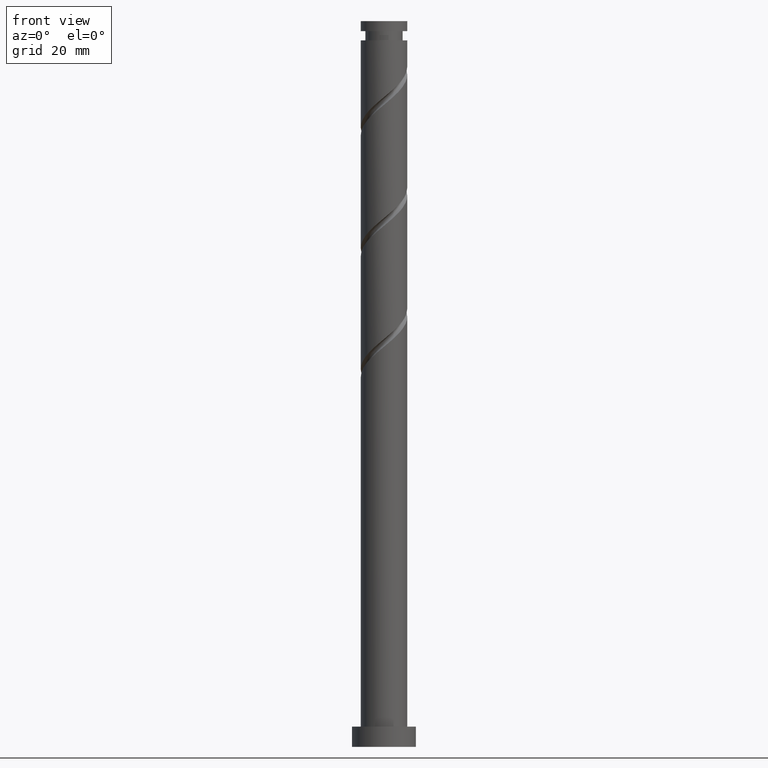
[diagram: clean part render]
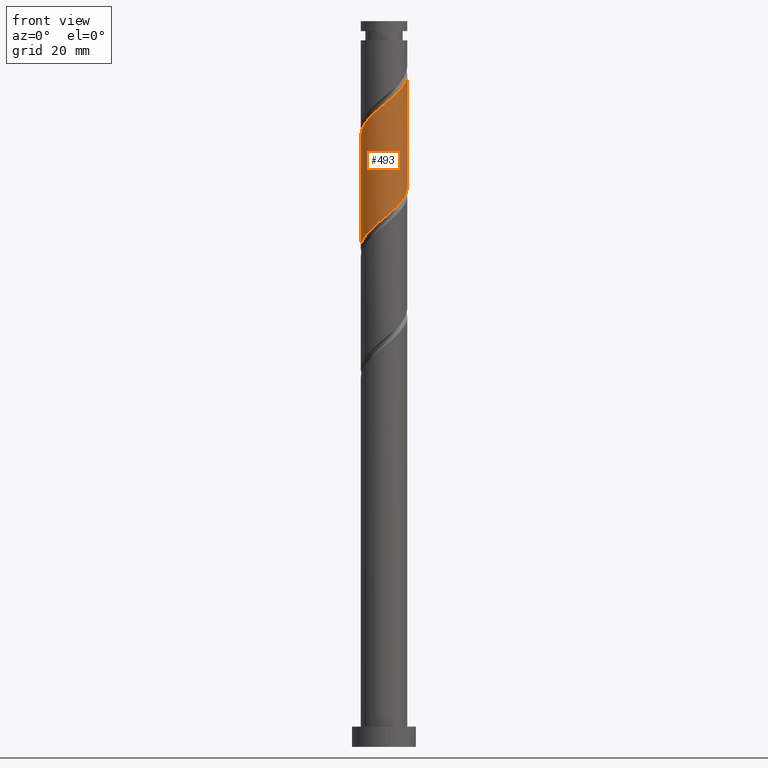
[diagram: same view with one face highlighted and labeled with its STEP entity id]
A machine part, front view. The second image highlights one B-rep face of the part: STEP entity #493.
In plain terms, the highlighted cylindrical surface (edge-blend (fillet) strip) has radius 8 mm, axis along (-0, -0, -1).
Its self-contained STEP definition (entity closure, byte-faithful):
#11 = CARTESIAN_POINT ( 'NONE',  ( 5.053057863439636144, -6.202145292455754522, 225.7043651023518294 ) ) ;
#16 = CARTESIAN_POINT ( 'NONE',  ( 2.233801474206661641, -7.681805189786587107, 184.0376984356851437 ) ) ;
#55 = CARTESIAN_POINT ( 'NONE',  ( -1.591979899370594698, -7.839999999999999858, 180.8325702305569678 ) ) ;
#76 = VERTEX_POINT ( 'NONE', #1139 ) ;
#88 = CARTESIAN_POINT ( 'NONE',  ( 0.000000000000000000, 0.000000000000000000, 250.0000000000000000 ) ) ;
#90 = CARTESIAN_POINT ( 'NONE',  ( 6.247698045502843023, -5.090170940630192931, 188.0441086920953637 ) ) ;
#120 = CARTESIAN_POINT ( 'NONE',  ( 8.000000000000014211, 5.114930978384067632E-15, 231.5879816879983935 ) ) ;
#126 = EDGE_LOOP ( 'NONE', ( #1558, #533, #244, #1672 ) ) ;
#135 = CARTESIAN_POINT ( 'NONE',  ( 2.543928247833117329, -7.646698643368457837, 223.3005189485055837 ) ) ;
#175 = CARTESIAN_POINT ( 'NONE',  ( 5.547845850269218282, -5.763801386381266489, 187.2428266408132629 ) ) ;
#183 = CARTESIAN_POINT ( 'NONE',  ( -5.053057863439629038, -6.202145292455744752, 177.6274420254286781 ) ) ;
#194 = VERTEX_POINT ( 'NONE', #1755 ) ;
#202 = CARTESIAN_POINT ( 'NONE',  ( -5.806134645082210888, -5.588592985340064878, 176.8261599741466625 ) ) ;
#237 = CARTESIAN_POINT ( 'NONE',  ( 7.590945600825408590, -2.525380146692651984, 190.4479548459415241 ) ) ;
#244 = ORIENTED_EDGE ( 'NONE', *, *, #1671, .T. ) ;
#276 = CARTESIAN_POINT ( 'NONE',  ( 7.895051195043959247, -1.291575250473287584, 230.5120574100441502 ) ) ;
#306 = CARTESIAN_POINT ( 'NONE',  ( 3.166541495077602519, -7.410572584663606577, 184.8389804869671877 ) ) ;
#394 = CARTESIAN_POINT ( 'NONE',  ( 7.897582266626952396, -1.603672477308134336, 191.2492368972235965 ) ) ;
#405 = CARTESIAN_POINT ( 'NONE',  ( -2.543928247833118661, -7.646698643368448067, 180.0312881792748669 ) ) ;
#414 = CARTESIAN_POINT ( 'NONE',  ( -8.000000000000012434, -0.3181850426941350007, 211.0188192702979393 ) ) ;
#418 = EDGE_CURVE ( 'NONE', #1532, #76, #870, .T. ) ;
#431 = CARTESIAN_POINT ( 'NONE',  ( -6.247698045502857234, -5.090170940630195595, 215.2876984356851153 ) ) ;
#446 = CARTESIAN_POINT ( 'NONE',  ( -7.284308935023874554, -3.447087816077166966, 213.6851343331209705 ) ) ;
#460 = CARTESIAN_POINT ( 'NONE',  ( 8.000000000000000000, 9.797174393178825657E-16, 250.0000000000000000 ) ) ;
#492 =( BOUNDED_CURVE ( )  B_SPLINE_CURVE ( 2, ( #579, #414, #1155, #1014, #1146, #446, #1699, #431, #1826, #550, #562, #997, #1126, #988, #1708, #1135, #1007, #135, #1024, #1299, #11, #1581, #586, #1556, #1163, #879, #276, #690, #120 ),
 .UNSPECIFIED., .F., .T. ) 
 B_SPLINE_CURVE_WITH_KNOTS ( ( 3, 2, 2, 2, 2, 2, 2, 2, 2, 2, 2, 2, 2, 2, 3 ),
 ( 0.5545271625973832164, 0.5576923076923077094, 0.5673076923076922906, 0.5769230769230768718, 0.5865384615384615641, 0.5961538461538461453, 0.6057692307692308376, 0.6153846153846154188, 0.6250000000000000000, 0.6346153846153845812, 0.6442307692307691624, 0.6538461538461538547, 0.6634615384615384359, 0.6730769230769231282, 0.6795271625973834384 ),
 .UNSPECIFIED. ) 
 CURVE ( )  GEOMETRIC_REPRESENTATION_ITEM ( )  RATIONAL_B_SPLINE_CURVE ( ( 0.9061636035682792967, 0.9069090390690678349, 0.9090909090909243817, 0.9024626128164281447, 0.9090909090909243817, 0.9024626128164281447, 0.9090909090909243817, 0.9024626128164281447, 0.9090909090909243817, 0.9024626128164281447, 0.9090909090909243817, 0.9024626128164281447, 0.9090909090909243817, 0.9024626128164281447, 0.9090909090909243817, 0.9024626128164281447, 0.9090909090909243817, 0.9024626128164281447, 0.9090909090909243817, 0.9024626128164281447, 0.9090909090909243817, 0.9024626128164281447, 0.9090909090909243817, 0.9024626128164281447, 0.9090909090909243817, 0.9024626128164281447, 0.9090909090909243817, 0.9046444828382845804, 0.9061636035682794077 ) ) 
 REPRESENTATION_ITEM ( '' )  );
#493 = ADVANCED_FACE ( 'NONE', ( #639 ), #932, .T. ) ;
#533 = ORIENTED_EDGE ( 'NONE', *, *, #689, .F. ) ;
#541 = CARTESIAN_POINT ( 'NONE',  ( 8.000000000000014211, 5.114930978384066843E-15, 231.5879816879983935 ) ) ;
#548 = CARTESIAN_POINT ( 'NONE',  ( -7.738225566650695164, -2.250208024216795888, 173.6210317690184297 ) ) ;
#550 = CARTESIAN_POINT ( 'NONE',  ( -4.847993655035601535, -6.437431832132351595, 216.8902625382492033 ) ) ;
#562 = CARTESIAN_POINT ( 'NONE',  ( -4.007267575056605580, -6.924002208397983971, 217.6915445895312757 ) ) ;
#579 = CARTESIAN_POINT ( 'NONE',  ( -8.000000000000012434, 4.905547838918053407E-15, 210.7546483546649938 ) ) ;
#582 = CARTESIAN_POINT ( 'NONE',  ( 4.007267575056594033, -6.924002208397975089, 185.6402625382492033 ) ) ;
#586 = CARTESIAN_POINT ( 'NONE',  ( 6.390495706159080136, -4.812646322924902798, 227.3069292049159174 ) ) ;
#614 = VECTOR ( 'NONE', #1649, 1000.000000000000000 ) ;
#639 = FACE_OUTER_BOUND ( 'NONE', #126, .T. ) ;
#653 = CARTESIAN_POINT ( 'NONE',  ( -8.000000000000000000, 0.000000000000000000, 250.0000000000000000 ) ) ;
#666 = CARTESIAN_POINT ( 'NONE',  ( -7.356541166943313392, -3.143453842363255646, 174.4223138203005021 ) ) ;
#668 = DIRECTION ( 'NONE',  ( -1.000000000000000000, 0.000000000000000000, 0.000000000000000000 ) ) ;
#669 = CARTESIAN_POINT ( 'NONE',  ( 8.000000000000000000, -0.3181850426941528753, 192.3129878574824829 ) ) ;
#678 = CARTESIAN_POINT ( 'NONE',  ( 7.974729545032074540, -0.6353650002891882975, 192.0505189485056121 ) ) ;
#689 = EDGE_CURVE ( 'NONE', #194, #1258, #492, .T. ) ;
#690 = CARTESIAN_POINT ( 'NONE',  ( 8.000000000000012434, -0.6500515082963541635, 231.0482809506500246 ) ) ;
#792 = CARTESIAN_POINT ( 'NONE',  ( 0.3305149512138224610, -7.993169575770562751, 182.4351343331210273 ) ) ;
#799 = CARTESIAN_POINT ( 'NONE',  ( 6.766003490263353903, -4.268629378353677950, 188.8453907433774361 ) ) ;
#825 = EDGE_CURVE ( 'NONE', #1258, #1532, #1720, .T. ) ;
#870 =( BOUNDED_CURVE ( )  B_SPLINE_CURVE ( 2, ( #1265, #669, #678, #394, #237, #961, #799, #90, #175, #1340, #582, #306, #16, #1499, #792, #1088, #55, #405, #975, #1537, #183, #202, #1223, #1384, #666, #548, #986, #1035, #1539 ),
 .UNSPECIFIED., .F., .T. ) 
 B_SPLINE_CURVE_WITH_KNOTS ( ( 3, 2, 2, 2, 2, 2, 2, 2, 2, 2, 2, 2, 2, 2, 3 ),
 ( 0.5545271625973833274, 0.5576923076923077094, 0.5673076923076922906, 0.5769230769230768718, 0.5865384615384615641, 0.5961538461538461453, 0.6057692307692307265, 0.6153846153846154188, 0.6250000000000000000, 0.6346153846153845812, 0.6442307692307692735, 0.6538461538461538547, 0.6634615384615384359, 0.6730769230769231282, 0.6795271625973833274 ),
 .UNSPECIFIED. ) 
 CURVE ( )  GEOMETRIC_REPRESENTATION_ITEM ( )  RATIONAL_B_SPLINE_CURVE ( ( 0.9061636035682724133, 0.9069090390690610626, 0.9090909090909177204, 0.9024626128164211503, 0.9090909090909177204, 0.9024626128164211503, 0.9090909090909177204, 0.9024626128164211503, 0.9090909090909177204, 0.9024626128164211503, 0.9090909090909177204, 0.9024626128164211503, 0.9090909090909177204, 0.9024626128164211503, 0.9090909090909177204, 0.9024626128164211503, 0.9090909090909177204, 0.9024626128164211503, 0.9090909090909177204, 0.9024626128164211503, 0.9090909090909177204, 0.9024626128164211503, 0.9090909090909177204, 0.9024626128164211503, 0.9090909090909177204, 0.9024626128164211503, 0.9090909090909177204, 0.9046444828382775860, 0.9061636035682724133 ) ) 
 REPRESENTATION_ITEM ( '' )  );
#879 = CARTESIAN_POINT ( 'NONE',  ( 7.738225566650704046, -2.250208024216805214, 229.7107753587619925 ) ) ;
#883 = DIRECTION ( 'NONE',  ( -0.000000000000000000, -0.000000000000000000, -1.000000000000000000 ) ) ;
#932 = CYLINDRICAL_SURFACE ( 'NONE', #1160, 8.000000000000000000 ) ;
#961 = CARTESIAN_POINT ( 'NONE',  ( 7.284308935023863896, -3.447087816077163414, 189.6466727946594517 ) ) ;
#975 = CARTESIAN_POINT ( 'NONE',  ( -3.421954664815082925, -7.231198121469931905, 179.2300061279927945 ) ) ;
#986 = CARTESIAN_POINT ( 'NONE',  ( -7.895051195043946812, -1.291575250473280922, 172.8197497177364141 ) ) ;
#988 = CARTESIAN_POINT ( 'NONE',  ( -1.301061453335726981, -7.953037794909581848, 220.0953907433774361 ) ) ;
#997 = CARTESIAN_POINT ( 'NONE',  ( -3.166541495077610513, -7.410572584663614570, 218.4928266408132629 ) ) ;
#1007 = CARTESIAN_POINT ( 'NONE',  ( 1.591979899370593809, -7.840000000000014069, 222.4992368972235965 ) ) ;
#1012 = VECTOR ( 'NONE', #883, 1000.000000000000000 ) ;
#1014 = CARTESIAN_POINT ( 'NONE',  ( -7.897582266626965719, -1.603672477308133448, 212.0825702305569394 ) ) ;
#1024 = CARTESIAN_POINT ( 'NONE',  ( 3.421954664815082481, -7.231198121469948781, 224.1018009997876845 ) ) ;
#1035 = CARTESIAN_POINT ( 'NONE',  ( -8.000000000000001776, -0.6500515082963619351, 172.2835261771305397 ) ) ;
#1088 = CARTESIAN_POINT ( 'NONE',  ( -0.6400315509080729548, -8.033301356631552537, 181.6338522818389549 ) ) ;
#1126 = CARTESIAN_POINT ( 'NONE',  ( -2.233801474206668303, -7.681805189786598653, 219.2941086920954206 ) ) ;
#1135 = CARTESIAN_POINT ( 'NONE',  ( 0.6400315509080670706, -8.033301356631564971, 221.6979548459415241 ) ) ;
#1139 = CARTESIAN_POINT ( 'NONE',  ( -8.000000000000000000, 5.623432888515860977E-15, 171.7438254397821424 ) ) ;
#1146 = CARTESIAN_POINT ( 'NONE',  ( -7.590945600825421025, -2.525380146692649763, 212.8838522818389833 ) ) ;
#1155 = CARTESIAN_POINT ( 'NONE',  ( -7.974729545032090527, -0.6353650002891810811, 211.2812881792748385 ) ) ;
#1160 = AXIS2_PLACEMENT_3D ( 'NONE', #88, #1496, #668 ) ;
#1163 = CARTESIAN_POINT ( 'NONE',  ( 7.356541166943324050, -3.143453842363264084, 228.9094933074800338 ) ) ;
#1223 = CARTESIAN_POINT ( 'NONE',  ( -6.390495706159072142, -4.812646322924889475, 176.0248779228646185 ) ) ;
#1258 = VERTEX_POINT ( 'NONE', #541 ) ;
#1265 = CARTESIAN_POINT ( 'NONE',  ( 8.000000000000000000, -8.734268103439527594E-15, 192.5771587731154284 ) ) ;
#1299 = CARTESIAN_POINT ( 'NONE',  ( 4.299981081797047189, -6.815697599571435283, 224.9030830510696717 ) ) ;
#1340 = CARTESIAN_POINT ( 'NONE',  ( 4.847993655035589100, -6.437431832132345377, 186.4415445895312757 ) ) ;
#1384 = CARTESIAN_POINT ( 'NONE',  ( -6.974856767235932509, -4.036699660509713183, 175.2235958715824609 ) ) ;
#1460 = CARTESIAN_POINT ( 'NONE',  ( 8.000000000000000000, -8.734268103439527594E-15, 192.5771587731154284 ) ) ;
#1496 = DIRECTION ( 'NONE',  ( -0.000000000000000000, -0.000000000000000000, -1.000000000000000000 ) ) ;
#1499 = CARTESIAN_POINT ( 'NONE',  ( 1.301061453335717877, -7.953037794909570302, 183.2364163844030713 ) ) ;
#1502 = LINE ( 'NONE', #653, #614 ) ;
#1532 = VERTEX_POINT ( 'NONE', #1460 ) ;
#1537 = CARTESIAN_POINT ( 'NONE',  ( -4.299981081797044524, -6.815697599571421961, 178.4287240767107221 ) ) ;
#1539 = CARTESIAN_POINT ( 'NONE',  ( -8.000000000000000000, 5.623432888515860977E-15, 171.7438254397821424 ) ) ;
#1556 = CARTESIAN_POINT ( 'NONE',  ( 6.974856767235939614, -4.036699660509726506, 228.1082112561979898 ) ) ;
#1558 = ORIENTED_EDGE ( 'NONE', *, *, #825, .F. ) ;
#1581 = CARTESIAN_POINT ( 'NONE',  ( 5.806134645082217105, -5.588592985340077313, 226.5056471536337881 ) ) ;
#1649 = DIRECTION ( 'NONE',  ( -0.000000000000000000, -0.000000000000000000, -1.000000000000000000 ) ) ;
#1671 = EDGE_CURVE ( 'NONE', #194, #76, #1502, .T. ) ;
#1672 = ORIENTED_EDGE ( 'NONE', *, *, #418, .F. ) ;
#1699 = CARTESIAN_POINT ( 'NONE',  ( -6.766003490263367226, -4.268629378353682391, 214.4864163844030713 ) ) ;
#1708 = CARTESIAN_POINT ( 'NONE',  ( -0.3305149512138301215, -7.993169575770573410, 220.8966727946595086 ) ) ;
#1720 = LINE ( 'NONE', #460, #1012 ) ;
#1755 = CARTESIAN_POINT ( 'NONE',  ( -8.000000000000012434, 4.905547838918053407E-15, 210.7546483546649938 ) ) ;
#1826 = CARTESIAN_POINT ( 'NONE',  ( -5.547845850269232493, -5.763801386381274483, 216.0889804869671877 ) ) ;